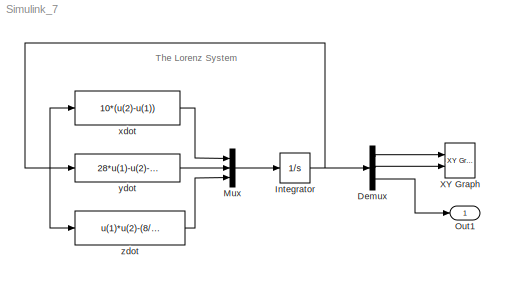
MODEL Simulink_7
KIND model
BLOCK [Demux] Demux
  Outputs = 3
  Ports = [1, 3]
  SID = 1
BLOCK [Integrator] Integrator
  InitialCondition = [15 20 30]
  LowerSaturationLimit = 0
  Ports = [1, 1]
  SID = 2
  UpperSaturationLimit = 50
BLOCK [Mux] Mux
  DisplayOption = bar
  Inputs = 3
  Ports = [3, 1]
  SID = 3
BLOCK [Outport] Out1
  IconDisplay = Port number
  SID = 8
BLOCK [Reference] XY Graph  REF=simulink/Sinks/XY Graph
  Ports = [2]
  SID = 4
  SourceBlock = simulink/Sinks/XY Graph
  SourceProductBaseCode = SL
  SourceProductName = Simulink
  SourceType = XY scope.
  st = -1
  xmax = 30
  xmin = -30
  ymax = 30
  ymin = -30
BLOCK [Fcn] xdot
  Description = sdhdkbkdf
  Expr = 10*(u(2)-u(1))
  SID = 5
BLOCK [Fcn] ydot
  Expr = 28*u(1)-u(2)-u(1)*u(3)
  SID = 6
BLOCK [Fcn] zdot
  Expr = u(1)*u(2)-(8/3)*u(3)
  SID = 7
ANNOTATION (root): The Lorenz System
LINE Demux:1 -> XY Graph:1
LINE Demux:2 -> XY Graph:2
LINE Demux:3 -> Out1:1
NET Integrator:1 -> Demux:1, xdot:1, ydot:1, zdot:1
LINE Mux:1 -> Integrator:1
LINE xdot:1 -> Mux:1
LINE ydot:1 -> Mux:2
LINE zdot:1 -> Mux:3
note: NET lines group one-source signal fan-out (src -> all destinations, sorted); 1:1 wires keep LINE
